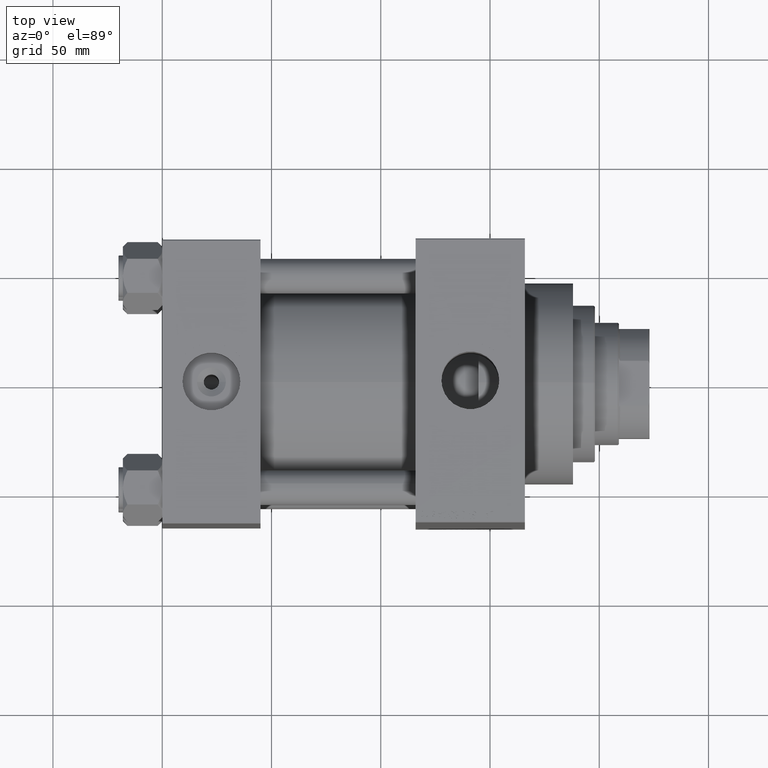
[diagram: clean part render]
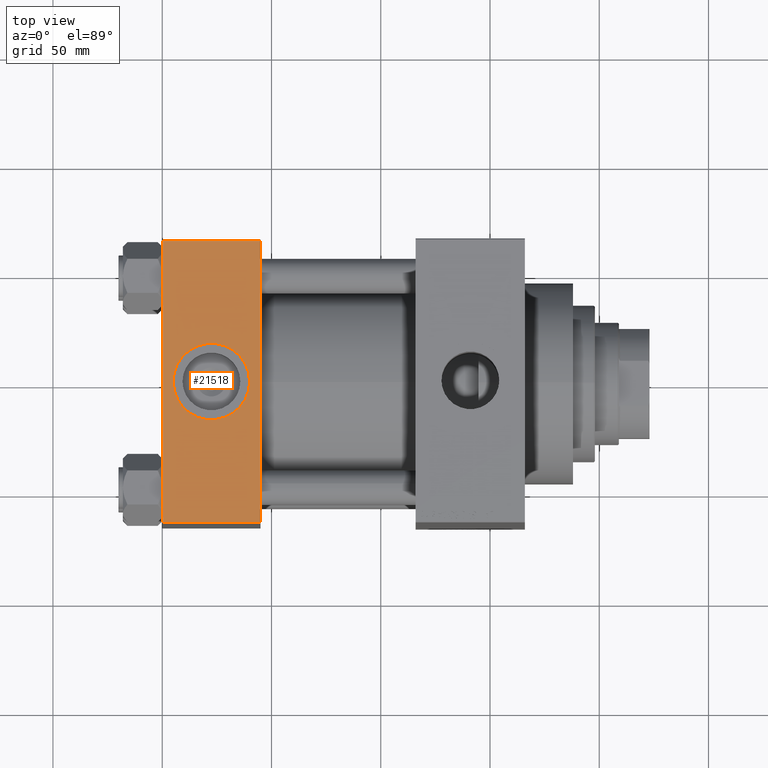
[diagram: same view with one face highlighted and labeled with its STEP entity id]
A machine part, top view. The second image highlights one B-rep face of the part: STEP entity #21518.
In plain terms, the highlighted planar face has unit normal (0, 0, -1).
Its self-contained STEP definition (entity closure, byte-faithful):
#410 = CARTESIAN_POINT ( 'NONE',  ( 45.00000000000000000, 65.00000000000000000, 65.00000000000001421 ) ) ;
#1358 = PLANE ( 'NONE',  #23592 ) ;
#1505 = EDGE_CURVE ( 'NONE', #15400, #23365, #1600, .T. ) ;
#1600 = LINE ( 'NONE', #31491, #41580 ) ;
#3199 = ORIENTED_EDGE ( 'NONE', *, *, #1505, .T. ) ;
#3558 = CARTESIAN_POINT ( 'NONE',  ( 0.000000000000000000, -64.49999999999997158, 65.00000000000000000 ) ) ;
#4981 = DIRECTION ( 'NONE',  ( 1.000000000000000000, 0.000000000000000000, 0.000000000000000000 ) ) ;
#5019 = DIRECTION ( 'NONE',  ( 0.000000000000000000, 0.000000000000000000, 1.000000000000000000 ) ) ;
#5589 = EDGE_CURVE ( 'NONE', #28893, #8118, #47134, .T. ) ;
#5692 = DIRECTION ( 'NONE',  ( 0.000000000000000000, -1.000000000000000000, -1.067522139062650425E-16 ) ) ;
#7295 = VECTOR ( 'NONE', #5692, 1000.000000000000000 ) ;
#8118 = VERTEX_POINT ( 'NONE', #19650 ) ;
#10920 = DIRECTION ( 'NONE',  ( -1.000000000000000000, 0.000000000000000000, 0.000000000000000000 ) ) ;
#11448 = CARTESIAN_POINT ( 'NONE',  ( 45.00000000000000000, 65.00000000000000000, 65.00000000000001421 ) ) ;
#12211 = FACE_BOUND ( 'NONE', #27030, .T. ) ;
#13563 = CARTESIAN_POINT ( 'NONE',  ( 0.000000000000000000, 64.49999999999997158, 65.00000000000001421 ) ) ;
#15400 = VERTEX_POINT ( 'NONE', #3558 ) ;
#16290 = EDGE_CURVE ( 'NONE', #8118, #15400, #31971, .T. ) ;
#16527 = CARTESIAN_POINT ( 'NONE',  ( 0.000000000000000000, 65.00000000000000000, 65.00000000000001421 ) ) ;
#18178 = AXIS2_PLACEMENT_3D ( 'NONE', #23344, #5019, #40225 ) ;
#18667 = LINE ( 'NONE', #11448, #23623 ) ;
#19650 = CARTESIAN_POINT ( 'NONE',  ( 0.000000000000000000, 64.49999999999997158, 65.00000000000001421 ) ) ;
#20867 = ORIENTED_EDGE ( 'NONE', *, *, #25404, .F. ) ;
#21518 = ADVANCED_FACE ( 'NONE', ( #12211, #26913 ), #1358, .F. ) ;
#22860 = ORIENTED_EDGE ( 'NONE', *, *, #45593, .F. ) ;
#23344 = CARTESIAN_POINT ( 'NONE',  ( 22.50000000000000000, -8.673617379884035472E-15, 65.00000000000000000 ) ) ;
#23365 = VERTEX_POINT ( 'NONE', #26295 ) ;
#23502 = CARTESIAN_POINT ( 'NONE',  ( 40.00000000000000000, -8.673617379884035472E-15, 65.00000000000000000 ) ) ;
#23592 = AXIS2_PLACEMENT_3D ( 'NONE', #410, #30777, #26218 ) ;
#23623 = VECTOR ( 'NONE', #44748, 1000.000000000000000 ) ;
#24358 = EDGE_LOOP ( 'NONE', ( #27466, #3199, #20867, #47705 ) ) ;
#25404 = EDGE_CURVE ( 'NONE', #28893, #23365, #18667, .T. ) ;
#26218 = DIRECTION ( 'NONE',  ( 0.000000000000000000, 1.000000000000000000, 1.067522139062650548E-16 ) ) ;
#26295 = CARTESIAN_POINT ( 'NONE',  ( 45.00000000000000000, -64.49999999999997158, 65.00000000000000000 ) ) ;
#26913 = FACE_OUTER_BOUND ( 'NONE', #24358, .T. ) ;
#27030 = EDGE_LOOP ( 'NONE', ( #43466, #22860 ) ) ;
#27466 = ORIENTED_EDGE ( 'NONE', *, *, #16290, .T. ) ;
#28893 = VERTEX_POINT ( 'NONE', #31293 ) ;
#30141 = AXIS2_PLACEMENT_3D ( 'NONE', #34251, #45609, #45364 ) ;
#30777 = DIRECTION ( 'NONE',  ( 0.000000000000000000, 1.067522139062650548E-16, -1.000000000000000000 ) ) ;
#31293 = CARTESIAN_POINT ( 'NONE',  ( 45.00000000000000000, 64.49999999999997158, 65.00000000000001421 ) ) ;
#31491 = CARTESIAN_POINT ( 'NONE',  ( 45.00000000000000000, -64.49999999999997158, 65.00000000000000000 ) ) ;
#31971 = LINE ( 'NONE', #16527, #7295 ) ;
#33205 = CIRCLE ( 'NONE', #30141, 17.50000000000000000 ) ;
#33330 = VERTEX_POINT ( 'NONE', #33360 ) ;
#33360 = CARTESIAN_POINT ( 'NONE',  ( 4.999999999999997335, -6.530485481376167224E-15, 65.00000000000000000 ) ) ;
#34251 = CARTESIAN_POINT ( 'NONE',  ( 22.50000000000000000, -8.673617379884035472E-15, 65.00000000000000000 ) ) ;
#34676 = VECTOR ( 'NONE', #10920, 1000.000000000000000 ) ;
#37469 = CIRCLE ( 'NONE', #18178, 17.50000000000000000 ) ;
#39868 = EDGE_CURVE ( 'NONE', #46590, #33330, #33205, .T. ) ;
#40225 = DIRECTION ( 'NONE',  ( 1.000000000000000000, 0.000000000000000000, 0.000000000000000000 ) ) ;
#41580 = VECTOR ( 'NONE', #4981, 1000.000000000000000 ) ;
#43466 = ORIENTED_EDGE ( 'NONE', *, *, #39868, .F. ) ;
#44748 = DIRECTION ( 'NONE',  ( 0.000000000000000000, -1.000000000000000000, -1.067522139062650425E-16 ) ) ;
#45364 = DIRECTION ( 'NONE',  ( 1.000000000000000000, 0.000000000000000000, 0.000000000000000000 ) ) ;
#45593 = EDGE_CURVE ( 'NONE', #33330, #46590, #37469, .T. ) ;
#45609 = DIRECTION ( 'NONE',  ( 0.000000000000000000, 0.000000000000000000, 1.000000000000000000 ) ) ;
#46590 = VERTEX_POINT ( 'NONE', #23502 ) ;
#47134 = LINE ( 'NONE', #13563, #34676 ) ;
#47705 = ORIENTED_EDGE ( 'NONE', *, *, #5589, .T. ) ;